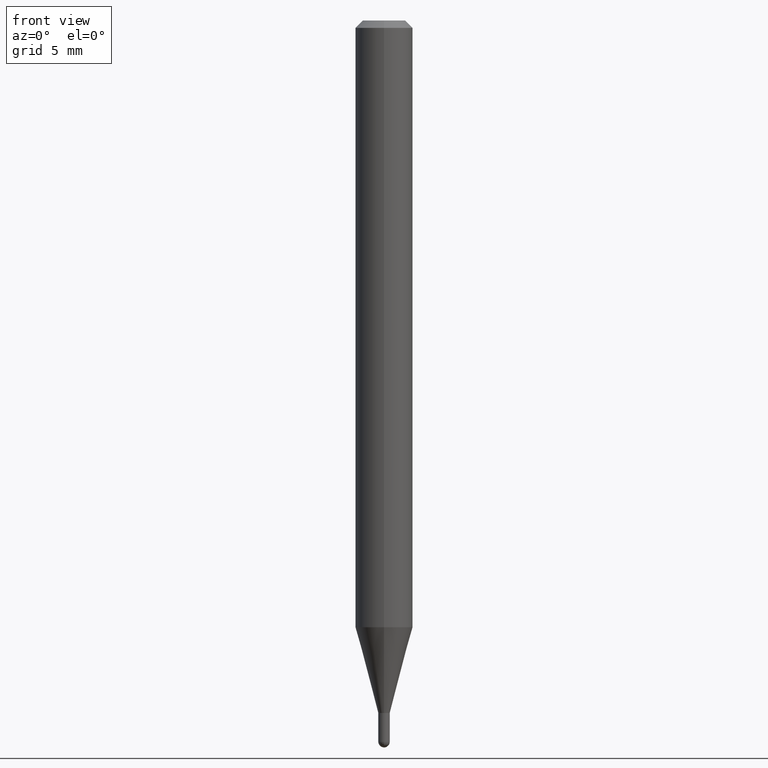
[diagram: clean part render]
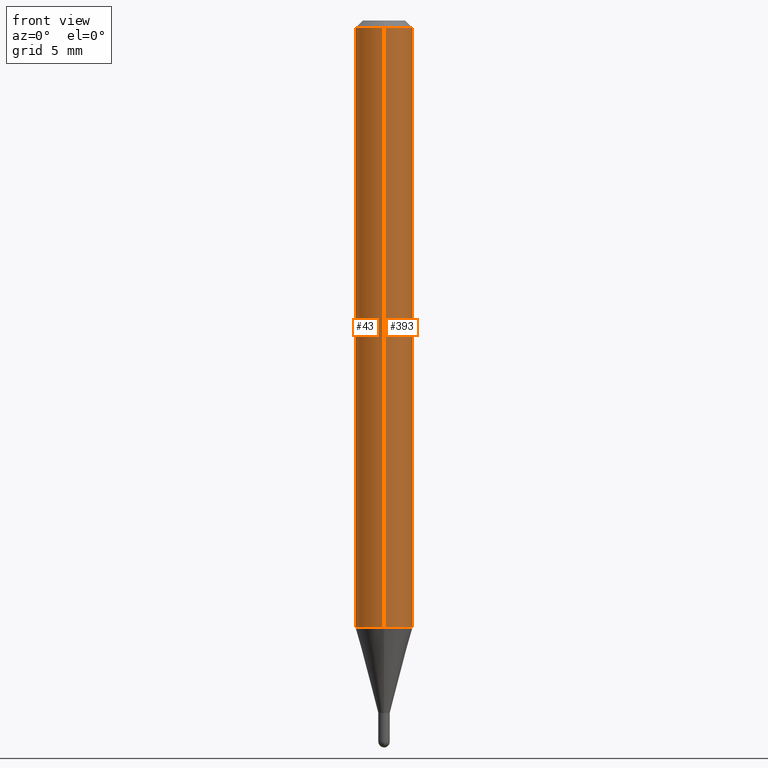
[diagram: same view with one multi-face feature highlighted, each face labeled with its STEP entity id]
A machine part, front view. The highlighted faces form ONE feature: a constant-radius fillet chain: 2 tangent blend faces with common blend radius 1.4999 mm. The faces share edges in the B-rep.
Their STEP definitions:
[1] entity #393 (Cylinder):
#9 = CARTESIAN_POINT ( 'NONE',  ( 3.668155165283920015E-31, -5.237290809998369353E-17, -0.01500000000000008098 ) ) ;
#16 = DIRECTION ( 'NONE',  ( -6.982962677686265922E-15, -1.000000000000000000, 3.505890868245046092E-15 ) ) ;
#52 = AXIS2_PLACEMENT_3D ( 'NONE', #9, #144, #16 ) ;
#78 = LINE ( 'NONE', #358, #298 ) ;
#80 = EDGE_CURVE ( 'NONE', #153, #373, #224, .T. ) ;
#81 = CARTESIAN_POINT ( 'NONE',  ( 3.053765095120501030E-29, -4.360081607215893074E-15, -1.248760599342374711 ) ) ;
#114 = ORIENTED_EDGE ( 'NONE', *, *, #154, .F. ) ;
#115 = DIRECTION ( 'NONE',  ( -2.445436776855933528E-29, 3.491527206665560554E-15, 1.000000000000000000 ) ) ;
#118 = EDGE_LOOP ( 'NONE', ( #505, #292, #114, #183 ) ) ;
#119 = CYLINDRICAL_SURFACE ( 'NONE', #476, 0.05904999999999999832 ) ;
#144 = DIRECTION ( 'NONE',  ( -2.445436776855933528E-29, 3.491527206665560554E-15, 1.000000000000000000 ) ) ;
#153 = VERTEX_POINT ( 'NONE', #266 ) ;
#154 = EDGE_CURVE ( 'NONE', #396, #459, #215, .T. ) ;
#161 = DIRECTION ( 'NONE',  ( -2.445436776855933528E-29, 3.491527206665560554E-15, 1.000000000000000000 ) ) ;
#183 = ORIENTED_EDGE ( 'NONE', *, *, #282, .F. ) ;
#215 = CIRCLE ( 'NONE', #52, 0.05904999999999999832 ) ;
#224 = CIRCLE ( 'NONE', #482, 0.05904999999999999832 ) ;
#241 = CARTESIAN_POINT ( 'NONE',  ( 4.195754854663694697E-16, 0.05904999999999562682, -1.248760599342375155 ) ) ;
#263 = CARTESIAN_POINT ( 'NONE',  ( 4.195754854663698641E-16, 0.05904999999999994975, -0.01500000000000028741 ) ) ;
#266 = CARTESIAN_POINT ( 'NONE',  ( -4.123439461173436122E-16, -0.05905000000000436289, -1.248760599342374489 ) ) ;
#277 = CARTESIAN_POINT ( 'NONE',  ( 0.000000000000000000, 0.000000000000000000, 0.000000000000000000 ) ) ;
#282 = EDGE_CURVE ( 'NONE', #153, #396, #78, .T. ) ;
#291 = DIRECTION ( 'NONE',  ( -2.445436776855933247E-29, 3.491527206665560554E-15, 1.000000000000000000 ) ) ;
#292 = ORIENTED_EDGE ( 'NONE', *, *, #339, .T. ) ;
#298 = VECTOR ( 'NONE', #507, 39.37007874015748143 ) ;
#316 = FACE_OUTER_BOUND ( 'NONE', #118, .T. ) ;
#339 = EDGE_CURVE ( 'NONE', #373, #459, #347, .T. ) ;
#343 = DIRECTION ( 'NONE',  ( -6.982962677686265922E-15, -1.000000000000000000, 3.491527206665560159E-15 ) ) ;
#347 = LINE ( 'NONE', #497, #378 ) ;
#358 = CARTESIAN_POINT ( 'NONE',  ( -4.123439461173739834E-16, -0.05904999999999999832, 2.061746815536013292E-16 ) ) ;
#373 = VERTEX_POINT ( 'NONE', #241 ) ;
#378 = VECTOR ( 'NONE', #291, 39.37007874015748143 ) ;
#390 = CARTESIAN_POINT ( 'NONE',  ( -4.123439461173736383E-16, -0.05905000000000005383, -0.01499999999999987454 ) ) ;
#393 = ADVANCED_FACE ( 'NONE', ( #316 ), #119, .T. ) ;
#396 = VERTEX_POINT ( 'NONE', #390 ) ;
#459 = VERTEX_POINT ( 'NONE', #263 ) ;
#476 = AXIS2_PLACEMENT_3D ( 'NONE', #277, #115, #343 ) ;
#478 = DIRECTION ( 'NONE',  ( -6.982962677686265922E-15, -1.000000000000000000, 4.626330217890369336E-15 ) ) ;
#482 = AXIS2_PLACEMENT_3D ( 'NONE', #81, #161, #478 ) ;
#497 = CARTESIAN_POINT ( 'NONE',  ( 4.195754854663390985E-16, 0.05904999999999999832, -2.061746815536013292E-16 ) ) ;
#505 = ORIENTED_EDGE ( 'NONE', *, *, #80, .T. ) ;
#507 = DIRECTION ( 'NONE',  ( -2.445436776855933247E-29, 3.491527206665560554E-15, 1.000000000000000000 ) ) ;
[2] entity #43 (Cylinder):
#33 = EDGE_CURVE ( 'NONE', #373, #153, #74, .T. ) ;
#43 = ADVANCED_FACE ( 'NONE', ( #470 ), #401, .T. ) ;
#74 = CIRCLE ( 'NONE', #362, 0.05904999999999999832 ) ;
#78 = LINE ( 'NONE', #358, #298 ) ;
#96 = CARTESIAN_POINT ( 'NONE',  ( 3.668155165283920015E-31, -5.237290809998369353E-17, -0.01500000000000008098 ) ) ;
#120 = AXIS2_PLACEMENT_3D ( 'NONE', #440, #199, #439 ) ;
#145 = EDGE_LOOP ( 'NONE', ( #240, #196, #468, #315 ) ) ;
#153 = VERTEX_POINT ( 'NONE', #266 ) ;
#166 = DIRECTION ( 'NONE',  ( -6.982962677686265922E-15, -1.000000000000000000, 4.626330217890369336E-15 ) ) ;
#167 = EDGE_CURVE ( 'NONE', #459, #396, #285, .T. ) ;
#178 = DIRECTION ( 'NONE',  ( -2.445436776855933528E-29, 3.491527206665560554E-15, 1.000000000000000000 ) ) ;
#196 = ORIENTED_EDGE ( 'NONE', *, *, #33, .T. ) ;
#199 = DIRECTION ( 'NONE',  ( -2.445436776855933528E-29, 3.491527206665560554E-15, 1.000000000000000000 ) ) ;
#237 = AXIS2_PLACEMENT_3D ( 'NONE', #96, #178, #377 ) ;
#240 = ORIENTED_EDGE ( 'NONE', *, *, #339, .F. ) ;
#241 = CARTESIAN_POINT ( 'NONE',  ( 4.195754854663694697E-16, 0.05904999999999562682, -1.248760599342375155 ) ) ;
#263 = CARTESIAN_POINT ( 'NONE',  ( 4.195754854663698641E-16, 0.05904999999999994975, -0.01500000000000028741 ) ) ;
#266 = CARTESIAN_POINT ( 'NONE',  ( -4.123439461173436122E-16, -0.05905000000000436289, -1.248760599342374489 ) ) ;
#275 = DIRECTION ( 'NONE',  ( -2.445436776855933528E-29, 3.491527206665560554E-15, 1.000000000000000000 ) ) ;
#282 = EDGE_CURVE ( 'NONE', #153, #396, #78, .T. ) ;
#285 = CIRCLE ( 'NONE', #237, 0.05904999999999999832 ) ;
#291 = DIRECTION ( 'NONE',  ( -2.445436776855933247E-29, 3.491527206665560554E-15, 1.000000000000000000 ) ) ;
#298 = VECTOR ( 'NONE', #507, 39.37007874015748143 ) ;
#315 = ORIENTED_EDGE ( 'NONE', *, *, #167, .F. ) ;
#339 = EDGE_CURVE ( 'NONE', #373, #459, #347, .T. ) ;
#347 = LINE ( 'NONE', #497, #378 ) ;
#350 = CARTESIAN_POINT ( 'NONE',  ( 3.053765095120501030E-29, -4.360081607215893074E-15, -1.248760599342374711 ) ) ;
#358 = CARTESIAN_POINT ( 'NONE',  ( -4.123439461173739834E-16, -0.05904999999999999832, 2.061746815536013292E-16 ) ) ;
#362 = AXIS2_PLACEMENT_3D ( 'NONE', #350, #275, #166 ) ;
#373 = VERTEX_POINT ( 'NONE', #241 ) ;
#377 = DIRECTION ( 'NONE',  ( -6.982962677686265922E-15, -1.000000000000000000, 3.505890868245046092E-15 ) ) ;
#378 = VECTOR ( 'NONE', #291, 39.37007874015748143 ) ;
#390 = CARTESIAN_POINT ( 'NONE',  ( -4.123439461173736383E-16, -0.05905000000000005383, -0.01499999999999987454 ) ) ;
#396 = VERTEX_POINT ( 'NONE', #390 ) ;
#401 = CYLINDRICAL_SURFACE ( 'NONE', #120, 0.05904999999999999832 ) ;
#439 = DIRECTION ( 'NONE',  ( -6.982962677686265922E-15, -1.000000000000000000, 3.491527206665560159E-15 ) ) ;
#440 = CARTESIAN_POINT ( 'NONE',  ( 0.000000000000000000, 0.000000000000000000, 0.000000000000000000 ) ) ;
#459 = VERTEX_POINT ( 'NONE', #263 ) ;
#468 = ORIENTED_EDGE ( 'NONE', *, *, #282, .T. ) ;
#470 = FACE_OUTER_BOUND ( 'NONE', #145, .T. ) ;
#497 = CARTESIAN_POINT ( 'NONE',  ( 4.195754854663390985E-16, 0.05904999999999999832, -2.061746815536013292E-16 ) ) ;
#507 = DIRECTION ( 'NONE',  ( -2.445436776855933247E-29, 3.491527206665560554E-15, 1.000000000000000000 ) ) ;